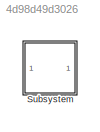
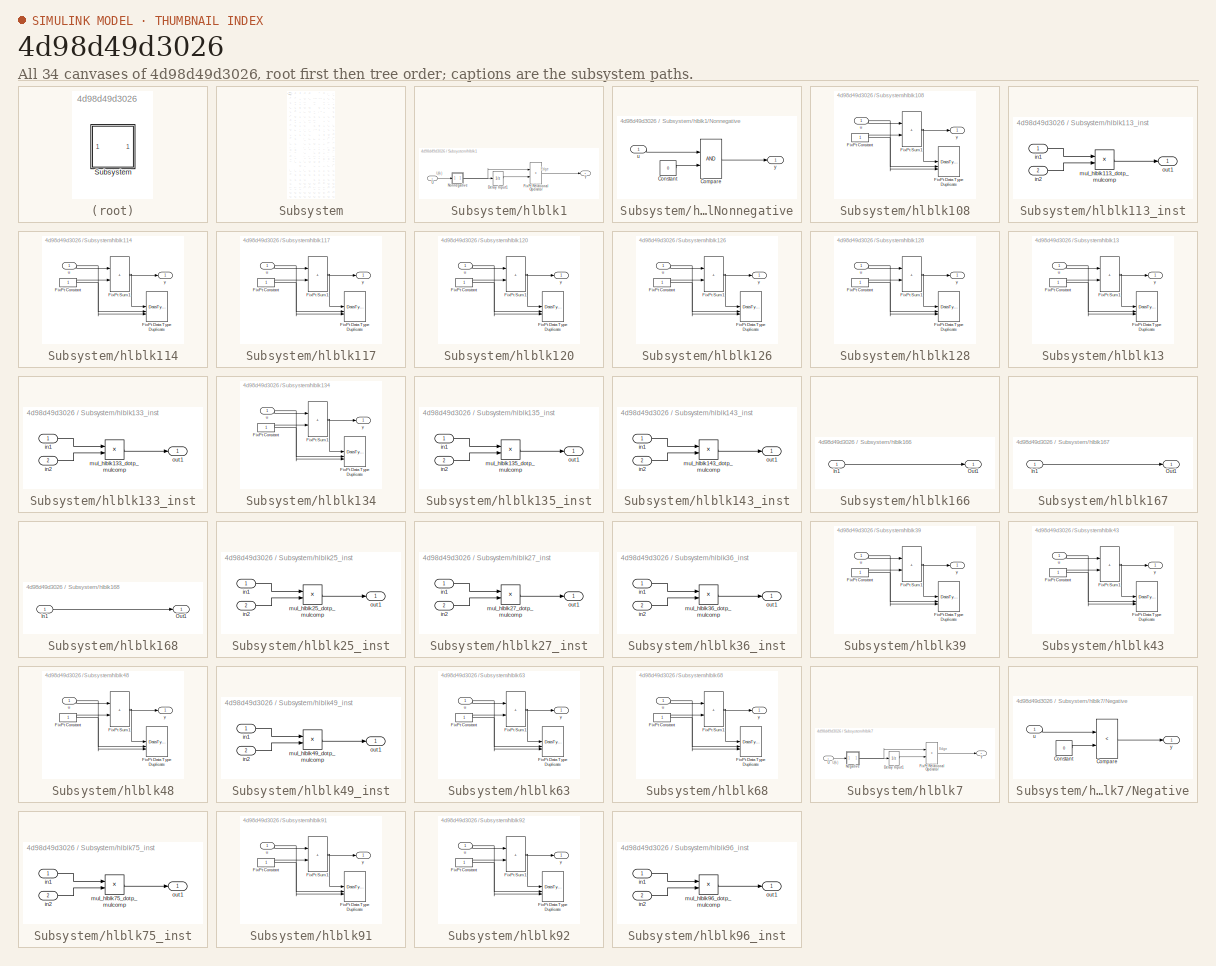
[diagram: thumbnail index - all 34 canvases of the model, root first then tree order]
MODEL slx_4d98d49d3026
KIND model
CONFIG AbsTol = auto
CONFIG EnableMultiTasking = off
CONFIG FixedStep = auto
CONFIG MaxStep = auto
CONFIG MinStep = auto
CONFIG RelTol = 1e-3
CONFIG SampleTimeConstraint = Unconstrained
CONFIG SolverName = VariableStepAuto
CONFIG StartTime = 0.0
CONFIG StopTime = 10.0
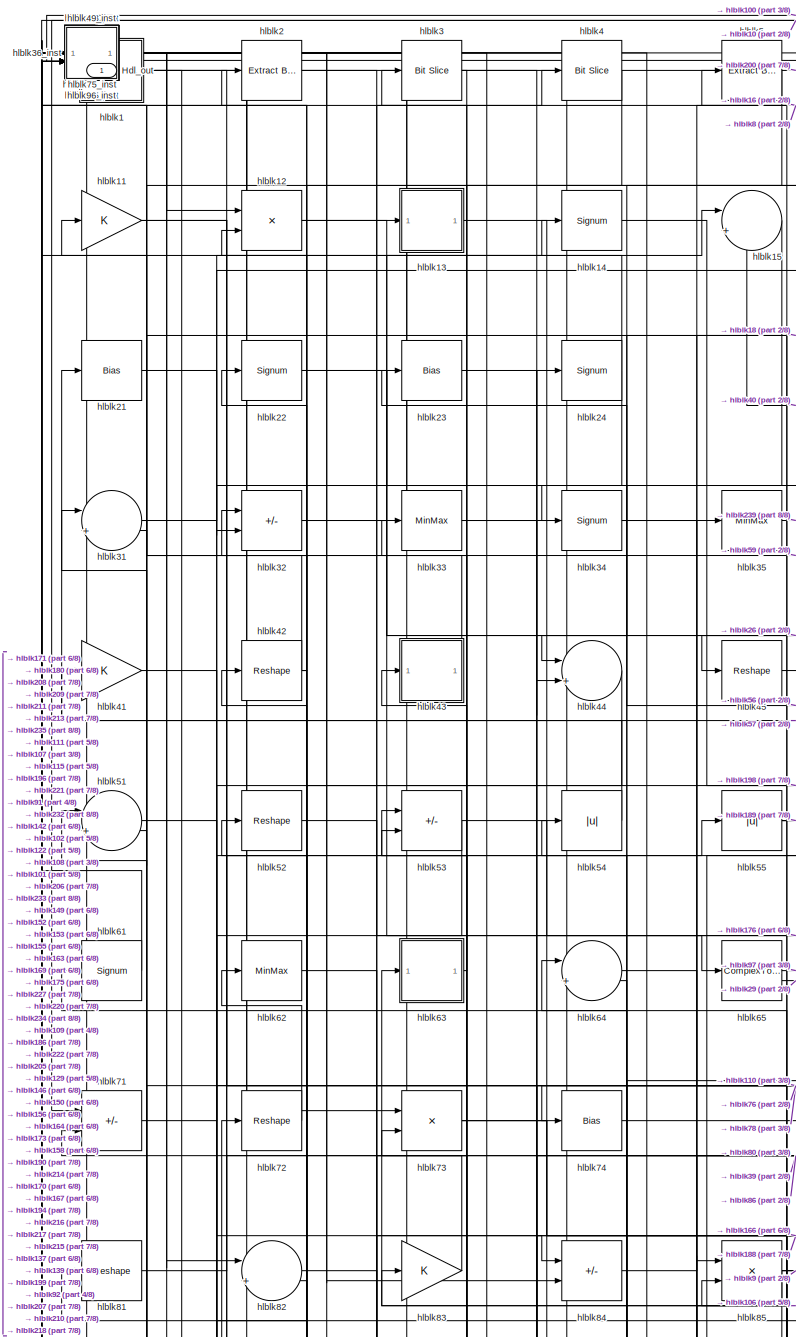
[diagram: Subsystem - part 1/8, top left region]
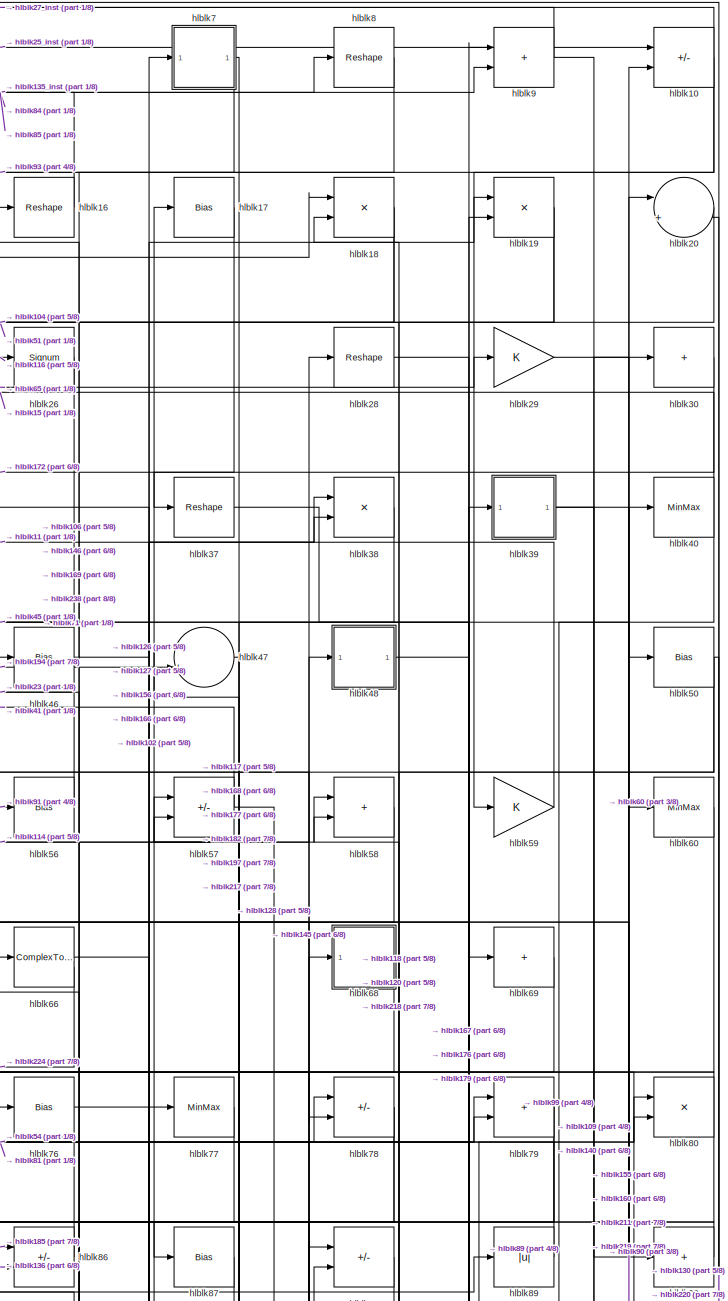
[diagram: Subsystem - part 2/8, top right region]
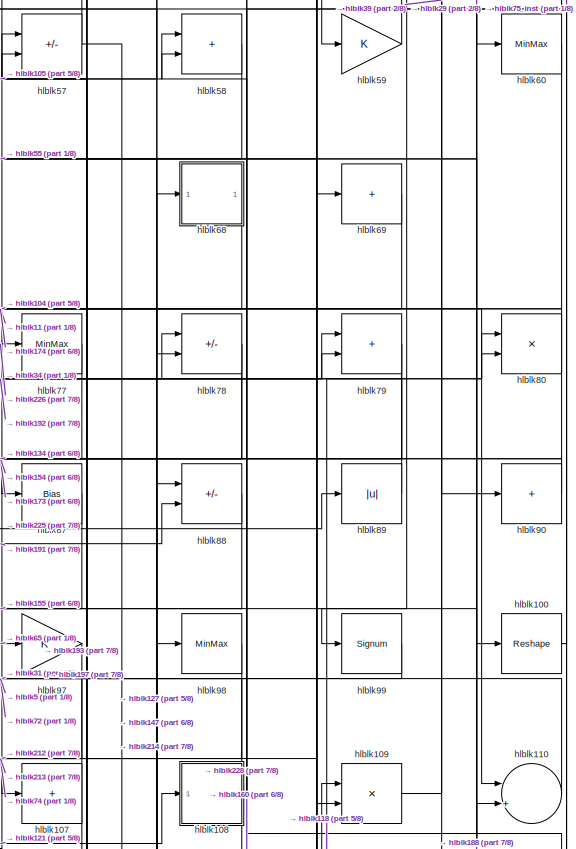
[diagram: Subsystem - part 3/8, middle right region]
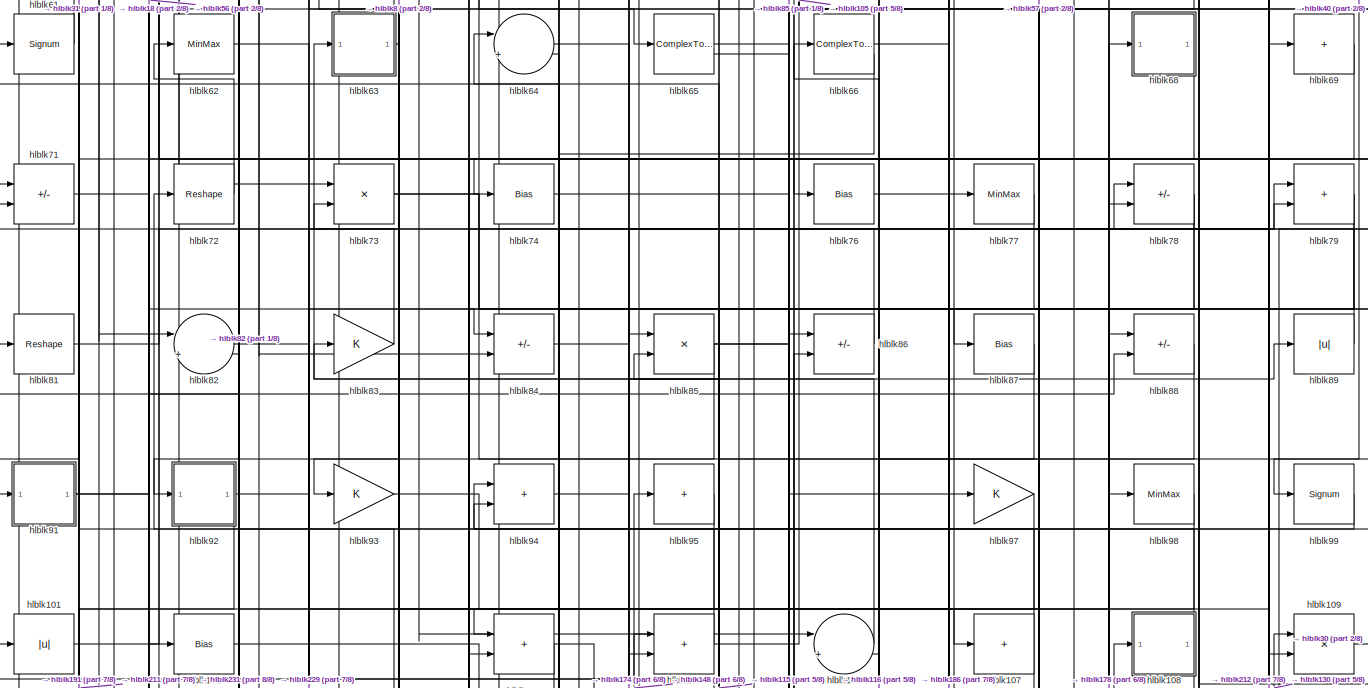
[diagram: Subsystem - part 4/8, full width, middle band]
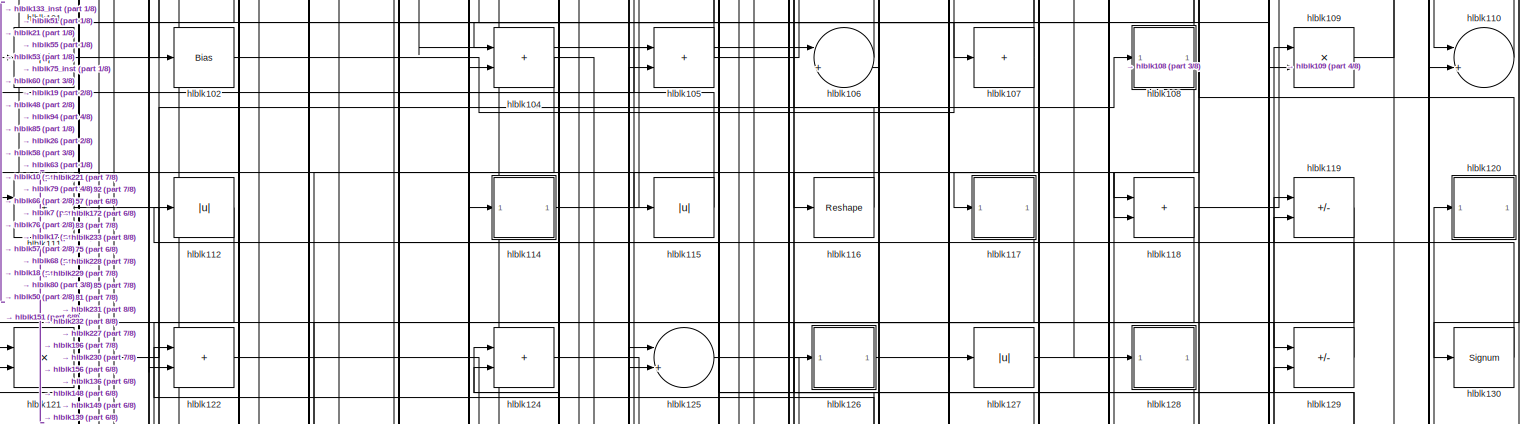
[diagram: Subsystem - part 5/8, full width, middle band]
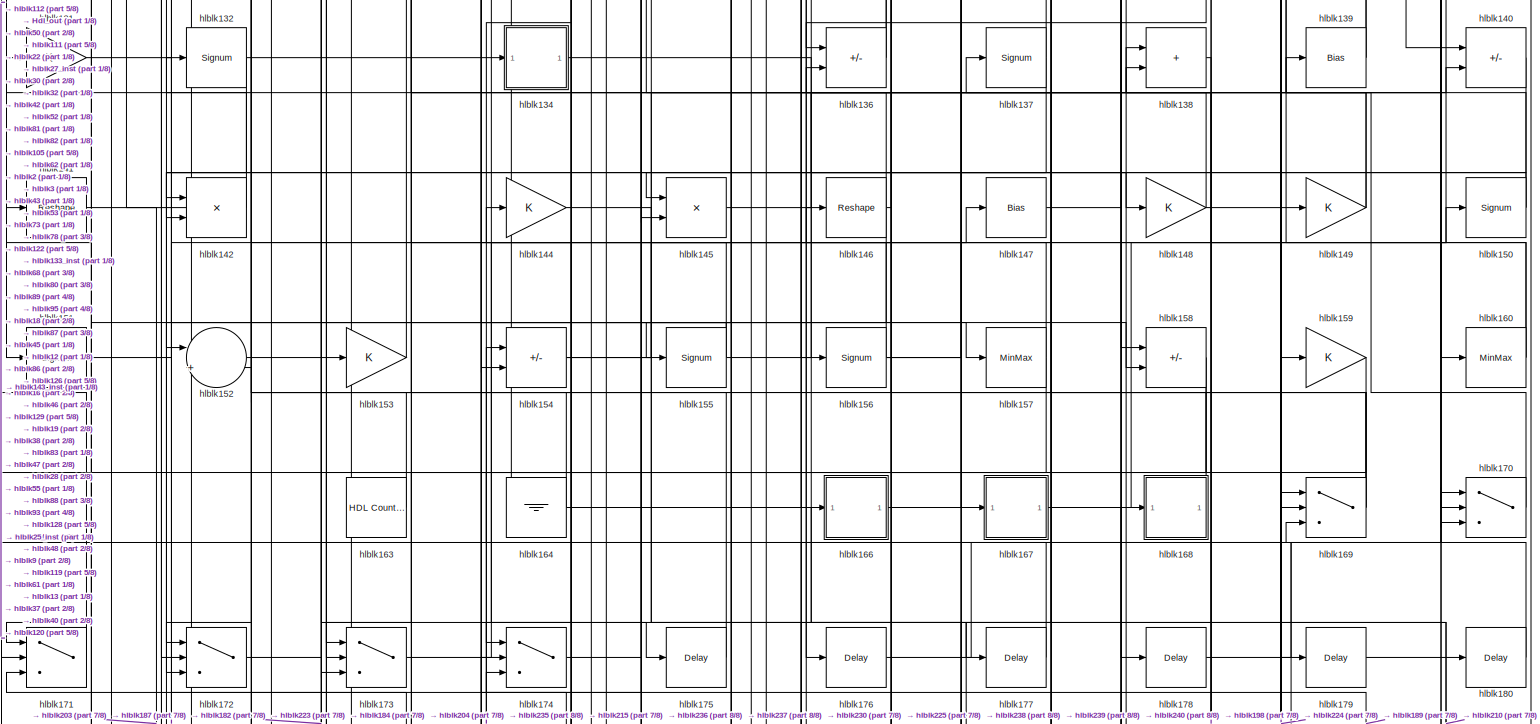
[diagram: Subsystem - part 6/8, full width, middle band]
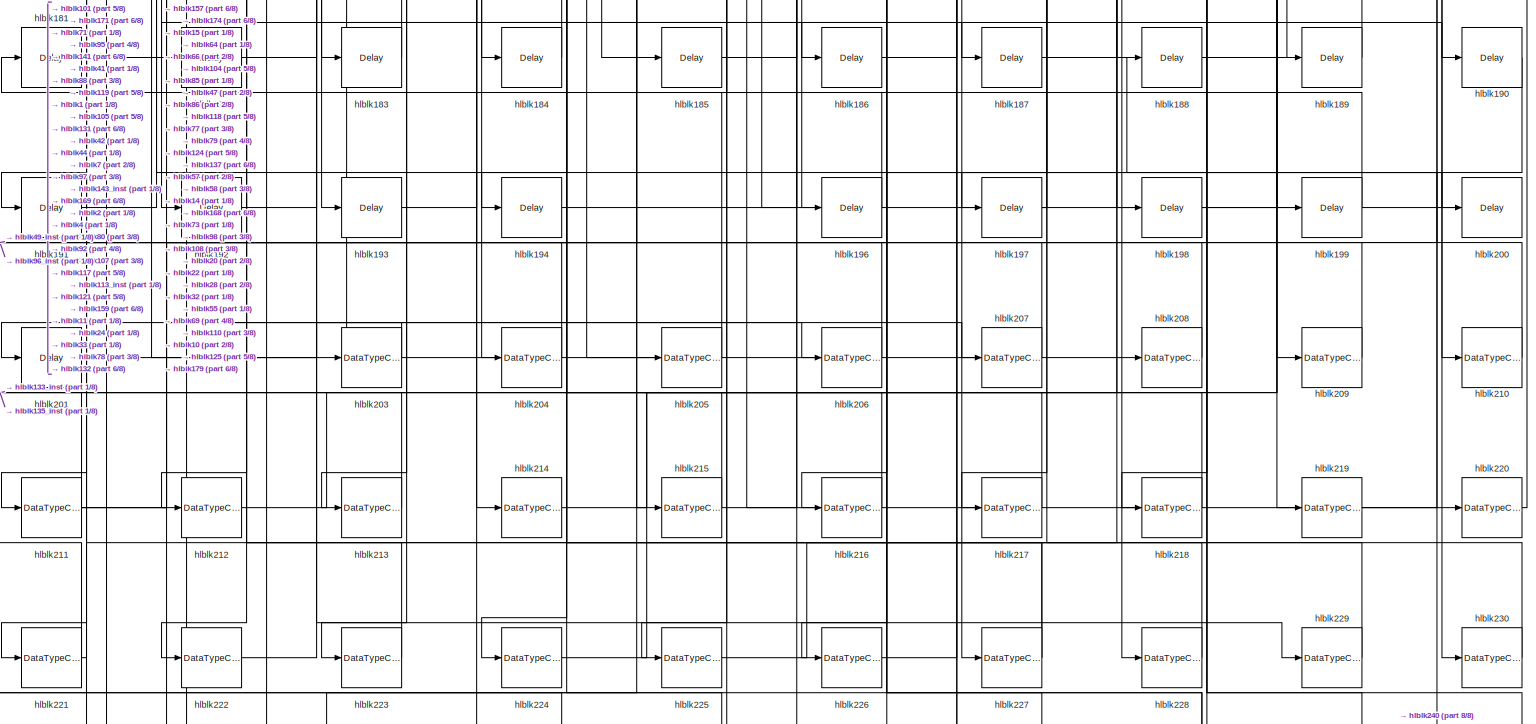
[diagram: Subsystem - part 7/8, full width, bottom band]
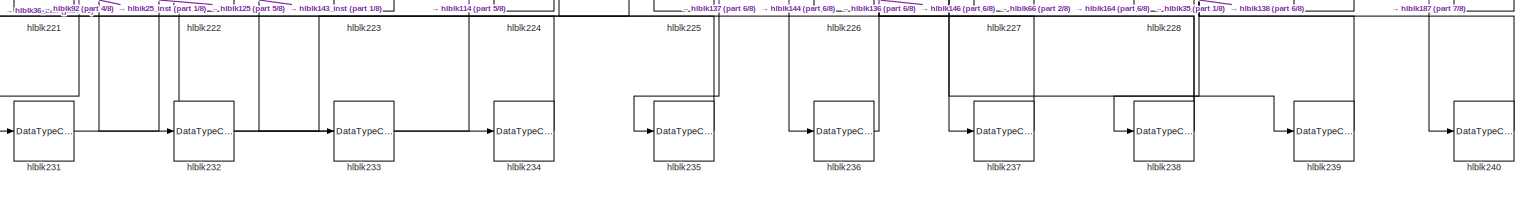
[diagram: Subsystem - part 8/8, full width, bottom band]
BLOCK [SubSystem] Subsystem
BLOCK [Outport] Subsystem/Hdl_out
  OutDataTypeStr = uint8
  SampleTime = 1
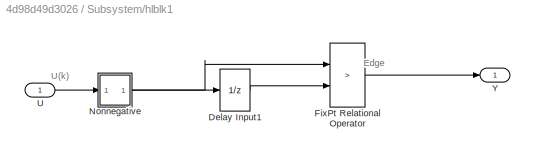
BLOCK [SubSystem] Subsystem/hlblk1
BLOCK [UnitDelay] Subsystem/hlblk1/Delay Input1
  Description = Store in Global RAM
  DisableCoverage = on
  HasFrameUpgradeWarning = on
  InitialCondition = vinit
  SampleTime = -1
BLOCK [RelationalOperator] Subsystem/hlblk1/FixPt Relational Operator
  InputSameDT = off
  Operator = >
  OutDataTypeStr = fixdt(0, 8)
  ZeroCross = off
BLOCK [SubSystem] Subsystem/hlblk1/Nonnegative
BLOCK [RelationalOperator] Subsystem/hlblk1/Nonnegative/Compare
  OutDataTypeStr = boolean
  ZeroCross = off
BLOCK [Constant] Subsystem/hlblk1/Nonnegative/Constant
  DisableCoverage = on
  OutDataTypeStr = Inherit: Inherit via back propagation
  PreserveConstantTs = on
  SampleTime = -1
  Value = 0
BLOCK [Inport] Subsystem/hlblk1/Nonnegative/u
  OutDataTypeStr = uint8
  SampleTime = 1
BLOCK [Outport] Subsystem/hlblk1/Nonnegative/y
  SampleTime = 1
BLOCK [Inport] Subsystem/hlblk1/U
  OutDataTypeStr = uint8
  SampleTime = 1
BLOCK [Outport] Subsystem/hlblk1/Y
  SampleTime = 1
BLOCK [Sum] Subsystem/hlblk10
  IconShape = rectangular
  Inputs = +-
  OutDataTypeStr = uint8
BLOCK [Reshape] Subsystem/hlblk100
BLOCK [Abs] Subsystem/hlblk101
  OutDataTypeStr = uint8
  SaturateOnIntegerOverflow = off
BLOCK [Bias] Subsystem/hlblk102
  Bias = 0.0
  SaturateOnIntegerOverflow = off
BLOCK [Sum] Subsystem/hlblk104
  IconShape = rectangular
  OutDataTypeStr = uint8
BLOCK [Sum] Subsystem/hlblk105
  IconShape = rectangular
  OutDataTypeStr = uint8
BLOCK [Sum] Subsystem/hlblk106
  Inputs = |++
  OutDataTypeStr = uint8
BLOCK [Sum] Subsystem/hlblk107
  IconShape = rectangular
  Inputs = +
  OutDataTypeStr = uint8
BLOCK [SubSystem] Subsystem/hlblk108
BLOCK [Constant] Subsystem/hlblk108/FixPt Constant
  DisableCoverage = on
  OutDataTypeStr = Inherit: Inherit via back propagation
  SampleTime = -1
BLOCK [DataTypeDuplicate] Subsystem/hlblk108/FixPt Data Type Duplicate
  DisableCoverage = on
  NumInputPorts = 3
BLOCK [Sum] Subsystem/hlblk108/FixPt Sum1
  IconShape = rectangular
  InputSameDT = on
  LockScale = on
  OutDataTypeStr = Inherit: Inherit via back propagation
BLOCK [Inport] Subsystem/hlblk108/u
  OutDataTypeStr = uint8
  SampleTime = 1
BLOCK [Outport] Subsystem/hlblk108/y
  SampleTime = 1
BLOCK [Product] Subsystem/hlblk109
  Inputs = */
  OutDataTypeStr = uint8
  RndMeth = Zero
  SaturateOnIntegerOverflow = on
BLOCK [Gain] Subsystem/hlblk11
  OutDataTypeStr = uint8
BLOCK [Sum] Subsystem/hlblk110
  Inputs = |++
  OutDataTypeStr = uint8
BLOCK [Sum] Subsystem/hlblk111
  IconShape = rectangular
  OutDataTypeStr = uint8
BLOCK [Abs] Subsystem/hlblk112
  OutDataTypeStr = uint8
  SaturateOnIntegerOverflow = off
BLOCK [SubSystem] Subsystem/hlblk113_inst
BLOCK [Inport] Subsystem/hlblk113_inst/in1
  OutDataTypeStr = uint8
  SampleTime = 1
BLOCK [Inport] Subsystem/hlblk113_inst/in2
  OutDataTypeStr = uint8
  Port = 2
  SampleTime = 1
BLOCK [Product] Subsystem/hlblk113_inst/mul_hlblk113_dotp_mulcomp
  Inputs = **
  OutDataTypeStr = uint8
  SampleTime = 1
BLOCK [Outport] Subsystem/hlblk113_inst/out1
  OutDataTypeStr = uint8
  SampleTime = 1
BLOCK [SubSystem] Subsystem/hlblk114
BLOCK [Constant] Subsystem/hlblk114/FixPt Constant
  DisableCoverage = on
  OutDataTypeStr = Inherit: Inherit via back propagation
  SampleTime = -1
BLOCK [DataTypeDuplicate] Subsystem/hlblk114/FixPt Data Type Duplicate
  DisableCoverage = on
  NumInputPorts = 3
BLOCK [Sum] Subsystem/hlblk114/FixPt Sum1
  IconShape = rectangular
  InputSameDT = on
  LockScale = on
  OutDataTypeStr = Inherit: Inherit via back propagation
BLOCK [Inport] Subsystem/hlblk114/u
  OutDataTypeStr = uint8
  SampleTime = 1
BLOCK [Outport] Subsystem/hlblk114/y
  SampleTime = 1
BLOCK [Abs] Subsystem/hlblk115
  OutDataTypeStr = uint8
  SaturateOnIntegerOverflow = off
BLOCK [Reshape] Subsystem/hlblk116
BLOCK [SubSystem] Subsystem/hlblk117
BLOCK [Constant] Subsystem/hlblk117/FixPt Constant
  DisableCoverage = on
  OutDataTypeStr = Inherit: Inherit via back propagation
  SampleTime = -1
BLOCK [DataTypeDuplicate] Subsystem/hlblk117/FixPt Data Type Duplicate
  DisableCoverage = on
  NumInputPorts = 3
BLOCK [Sum] Subsystem/hlblk117/FixPt Sum1
  IconShape = rectangular
  InputSameDT = on
  LockScale = on
  OutDataTypeStr = Inherit: Inherit via back propagation
BLOCK [Inport] Subsystem/hlblk117/u
  OutDataTypeStr = uint8
  SampleTime = 1
BLOCK [Outport] Subsystem/hlblk117/y
  SampleTime = 1
BLOCK [Sum] Subsystem/hlblk118
  IconShape = rectangular
  OutDataTypeStr = uint8
BLOCK [Sum] Subsystem/hlblk119
  IconShape = rectangular
  Inputs = +-
  OutDataTypeStr = uint8
BLOCK [Product] Subsystem/hlblk12
  Inputs = */
  OutDataTypeStr = uint8
  RndMeth = Zero
  SaturateOnIntegerOverflow = on
BLOCK [SubSystem] Subsystem/hlblk120
BLOCK [Constant] Subsystem/hlblk120/FixPt Constant
  DisableCoverage = on
  OutDataTypeStr = Inherit: Inherit via back propagation
  SampleTime = -1
BLOCK [DataTypeDuplicate] Subsystem/hlblk120/FixPt Data Type Duplicate
  DisableCoverage = on
  NumInputPorts = 3
BLOCK [Sum] Subsystem/hlblk120/FixPt Sum1
  IconShape = rectangular
  InputSameDT = on
  LockScale = on
  OutDataTypeStr = Inherit: Inherit via back propagation
BLOCK [Inport] Subsystem/hlblk120/u
  OutDataTypeStr = uint8
  SampleTime = 1
BLOCK [Outport] Subsystem/hlblk120/y
  SampleTime = 1
BLOCK [Product] Subsystem/hlblk121
  Inputs = */
  OutDataTypeStr = uint8
  RndMeth = Zero
  SaturateOnIntegerOverflow = on
BLOCK [Sum] Subsystem/hlblk122
  IconShape = rectangular
  OutDataTypeStr = uint8
BLOCK [Sum] Subsystem/hlblk124
  IconShape = rectangular
  OutDataTypeStr = uint8
BLOCK [Sum] Subsystem/hlblk125
  Inputs = |++
  OutDataTypeStr = uint8
BLOCK [SubSystem] Subsystem/hlblk126
BLOCK [Constant] Subsystem/hlblk126/FixPt Constant
  DisableCoverage = on
  OutDataTypeStr = Inherit: Inherit via back propagation
  SampleTime = -1
BLOCK [DataTypeDuplicate] Subsystem/hlblk126/FixPt Data Type Duplicate
  DisableCoverage = on
  NumInputPorts = 3
BLOCK [Sum] Subsystem/hlblk126/FixPt Sum1
  IconShape = rectangular
  InputSameDT = on
  LockScale = on
  OutDataTypeStr = Inherit: Inherit via back propagation
BLOCK [Inport] Subsystem/hlblk126/u
  OutDataTypeStr = uint8
  SampleTime = 1
BLOCK [Outport] Subsystem/hlblk126/y
  SampleTime = 1
BLOCK [Abs] Subsystem/hlblk127
  OutDataTypeStr = uint8
  SaturateOnIntegerOverflow = off
BLOCK [SubSystem] Subsystem/hlblk128
BLOCK [Constant] Subsystem/hlblk128/FixPt Constant
  DisableCoverage = on
  OutDataTypeStr = Inherit: Inherit via back propagation
  SampleTime = -1
BLOCK [DataTypeDuplicate] Subsystem/hlblk128/FixPt Data Type Duplicate
  DisableCoverage = on
  NumInputPorts = 3
BLOCK [Sum] Subsystem/hlblk128/FixPt Sum1
  IconShape = rectangular
  InputSameDT = on
  LockScale = on
  OutDataTypeStr = Inherit: Inherit via back propagation
BLOCK [Inport] Subsystem/hlblk128/u
  OutDataTypeStr = uint8
  SampleTime = 1
BLOCK [Outport] Subsystem/hlblk128/y
  SampleTime = 1
BLOCK [Sum] Subsystem/hlblk129
  IconShape = rectangular
  Inputs = +-
  OutDataTypeStr = uint8
BLOCK [SubSystem] Subsystem/hlblk13
BLOCK [Constant] Subsystem/hlblk13/FixPt Constant
  DisableCoverage = on
  OutDataTypeStr = Inherit: Inherit via back propagation
  SampleTime = -1
BLOCK [DataTypeDuplicate] Subsystem/hlblk13/FixPt Data Type Duplicate
  DisableCoverage = on
  NumInputPorts = 3
BLOCK [Sum] Subsystem/hlblk13/FixPt Sum1
  IconShape = rectangular
  InputSameDT = on
  LockScale = on
  OutDataTypeStr = Inherit: Inherit via back propagation
BLOCK [Inport] Subsystem/hlblk13/u
  OutDataTypeStr = uint8
  SampleTime = 1
BLOCK [Outport] Subsystem/hlblk13/y
  SampleTime = 1
BLOCK [Signum] Subsystem/hlblk130
BLOCK [Gain] Subsystem/hlblk131
  OutDataTypeStr = uint8
BLOCK [Signum] Subsystem/hlblk132
BLOCK [SubSystem] Subsystem/hlblk133_inst
BLOCK [Inport] Subsystem/hlblk133_inst/in1
  OutDataTypeStr = uint8
  SampleTime = 1
BLOCK [Inport] Subsystem/hlblk133_inst/in2
  OutDataTypeStr = uint8
  Port = 2
  SampleTime = 1
BLOCK [Product] Subsystem/hlblk133_inst/mul_hlblk133_dotp_mulcomp
  Inputs = **
  OutDataTypeStr = uint8
  SampleTime = 1
BLOCK [Outport] Subsystem/hlblk133_inst/out1
  OutDataTypeStr = uint8
  SampleTime = 1
BLOCK [SubSystem] Subsystem/hlblk134
BLOCK [Constant] Subsystem/hlblk134/FixPt Constant
  DisableCoverage = on
  OutDataTypeStr = Inherit: Inherit via back propagation
  SampleTime = -1
BLOCK [DataTypeDuplicate] Subsystem/hlblk134/FixPt Data Type Duplicate
  DisableCoverage = on
  NumInputPorts = 3
BLOCK [Sum] Subsystem/hlblk134/FixPt Sum1
  IconShape = rectangular
  InputSameDT = on
  LockScale = on
  OutDataTypeStr = Inherit: Inherit via back propagation
BLOCK [Inport] Subsystem/hlblk134/u
  OutDataTypeStr = uint8
  SampleTime = 1
BLOCK [Outport] Subsystem/hlblk134/y
  SampleTime = 1
BLOCK [SubSystem] Subsystem/hlblk135_inst
BLOCK [Inport] Subsystem/hlblk135_inst/in1
  OutDataTypeStr = uint8
  SampleTime = 1
BLOCK [Inport] Subsystem/hlblk135_inst/in2
  OutDataTypeStr = uint8
  Port = 2
  SampleTime = 1
BLOCK [Product] Subsystem/hlblk135_inst/mul_hlblk135_dotp_mulcomp
  Inputs = **
  OutDataTypeStr = uint8
  SampleTime = 1
BLOCK [Outport] Subsystem/hlblk135_inst/out1
  OutDataTypeStr = uint8
  SampleTime = 1
BLOCK [Sum] Subsystem/hlblk136
  IconShape = rectangular
  Inputs = +-
  OutDataTypeStr = uint8
BLOCK [Signum] Subsystem/hlblk137
BLOCK [Sum] Subsystem/hlblk138
  IconShape = rectangular
  OutDataTypeStr = uint8
BLOCK [Bias] Subsystem/hlblk139
  Bias = 0.0
  SaturateOnIntegerOverflow = off
BLOCK [Signum] Subsystem/hlblk14
BLOCK [Sum] Subsystem/hlblk140
  IconShape = rectangular
  Inputs = +-
  OutDataTypeStr = uint8
BLOCK [Reshape] Subsystem/hlblk141
BLOCK [Product] Subsystem/hlblk142
  Inputs = */
  OutDataTypeStr = uint8
  RndMeth = Zero
  SaturateOnIntegerOverflow = on
BLOCK [SubSystem] Subsystem/hlblk143_inst
BLOCK [Inport] Subsystem/hlblk143_inst/in1
  OutDataTypeStr = uint8
  SampleTime = 1
BLOCK [Inport] Subsystem/hlblk143_inst/in2
  OutDataTypeStr = uint8
  Port = 2
  SampleTime = 1
BLOCK [Product] Subsystem/hlblk143_inst/mul_hlblk143_dotp_mulcomp
  Inputs = **
  OutDataTypeStr = uint8
  SampleTime = 1
BLOCK [Outport] Subsystem/hlblk143_inst/out1
  OutDataTypeStr = uint8
  SampleTime = 1
BLOCK [Gain] Subsystem/hlblk144
  OutDataTypeStr = uint8
BLOCK [Product] Subsystem/hlblk145
  Inputs = */
  OutDataTypeStr = uint8
  RndMeth = Zero
  SaturateOnIntegerOverflow = on
BLOCK [Reshape] Subsystem/hlblk146
BLOCK [Bias] Subsystem/hlblk147
  Bias = 0.0
  SaturateOnIntegerOverflow = off
BLOCK [Gain] Subsystem/hlblk148
  OutDataTypeStr = uint8
BLOCK [Gain] Subsystem/hlblk149
  OutDataTypeStr = uint8
BLOCK [Sum] Subsystem/hlblk15
  Inputs = |++
  OutDataTypeStr = uint8
BLOCK [Signum] Subsystem/hlblk150
BLOCK [Signum] Subsystem/hlblk151
BLOCK [Sum] Subsystem/hlblk152
  Inputs = |++
  OutDataTypeStr = uint8
BLOCK [Gain] Subsystem/hlblk153
  OutDataTypeStr = uint8
BLOCK [Sum] Subsystem/hlblk154
  IconShape = rectangular
  Inputs = +-
  OutDataTypeStr = uint8
BLOCK [Signum] Subsystem/hlblk155
BLOCK [Signum] Subsystem/hlblk156
BLOCK [MinMax] Subsystem/hlblk157
  OutDataTypeStr = uint8
BLOCK [Sum] Subsystem/hlblk158
  IconShape = rectangular
  Inputs = +-
  OutDataTypeStr = uint8
BLOCK [Gain] Subsystem/hlblk159
  OutDataTypeStr = uint8
BLOCK [Reshape] Subsystem/hlblk16
BLOCK [MinMax] Subsystem/hlblk160
  OutDataTypeStr = uint8
BLOCK [Reference] Subsystem/hlblk163  REF=hdlsllib/Sources/HDL Counter
  SourceBlock = hdlsllib/Sources/HDL Counter
  SourceType = HDL Counter
BLOCK [Ground] Subsystem/hlblk164
BLOCK [SubSystem] Subsystem/hlblk166
BLOCK [Inport] Subsystem/hlblk166/In1
  OutDataTypeStr = uint8
  PortDimensions = 1
  SampleTime = 1
BLOCK [Outport] Subsystem/hlblk166/Out1
  SampleTime = 1
BLOCK [SubSystem] Subsystem/hlblk167
BLOCK [Inport] Subsystem/hlblk167/In1
  OutDataTypeStr = uint8
  PortDimensions = 1
  SampleTime = 1
BLOCK [Outport] Subsystem/hlblk167/Out1
  SampleTime = 1
BLOCK [SubSystem] Subsystem/hlblk168
BLOCK [Inport] Subsystem/hlblk168/In1
  OutDataTypeStr = uint8
  PortDimensions = 1
  SampleTime = 1
BLOCK [Outport] Subsystem/hlblk168/Out1
  SampleTime = 1
BLOCK [Switch] Subsystem/hlblk169
  InputSameDT = off
  OutDataTypeStr = uint8
  SaturateOnIntegerOverflow = off
BLOCK [Bias] Subsystem/hlblk17
  Bias = 0.0
  SaturateOnIntegerOverflow = off
BLOCK [Switch] Subsystem/hlblk170
  InputSameDT = off
  OutDataTypeStr = uint8
  SaturateOnIntegerOverflow = off
BLOCK [Switch] Subsystem/hlblk171
  InputSameDT = off
  OutDataTypeStr = uint8
  SaturateOnIntegerOverflow = off
BLOCK [Switch] Subsystem/hlblk172
  InputSameDT = off
  OutDataTypeStr = uint8
  SaturateOnIntegerOverflow = off
BLOCK [Switch] Subsystem/hlblk173
  InputSameDT = off
  OutDataTypeStr = uint8
  SaturateOnIntegerOverflow = off
BLOCK [Switch] Subsystem/hlblk174
  InputSameDT = off
  OutDataTypeStr = uint8
  SaturateOnIntegerOverflow = off
BLOCK [Delay] Subsystem/hlblk175
  InputPortMap = u0
  SampleTime = 1
BLOCK [Delay] Subsystem/hlblk176
  InputPortMap = u0
  SampleTime = 1
BLOCK [Delay] Subsystem/hlblk177
  InputPortMap = u0
  SampleTime = 1
BLOCK [Delay] Subsystem/hlblk178
  InputPortMap = u0
  SampleTime = 1
BLOCK [Delay] Subsystem/hlblk179
  InputPortMap = u0
  SampleTime = 1
BLOCK [Product] Subsystem/hlblk18
  Inputs = */
  OutDataTypeStr = uint8
  RndMeth = Zero
  SaturateOnIntegerOverflow = on
BLOCK [Delay] Subsystem/hlblk180
  InputPortMap = u0
  SampleTime = 1
BLOCK [Delay] Subsystem/hlblk181
  InputPortMap = u0
  SampleTime = 1
BLOCK [Delay] Subsystem/hlblk182
  InputPortMap = u0
  SampleTime = 1
BLOCK [Delay] Subsystem/hlblk183
  InputPortMap = u0
  SampleTime = 1
BLOCK [Delay] Subsystem/hlblk184
  InputPortMap = u0
  SampleTime = 1
BLOCK [Delay] Subsystem/hlblk185
  InputPortMap = u0
  SampleTime = 1
BLOCK [Delay] Subsystem/hlblk186
  InputPortMap = u0
  SampleTime = 1
BLOCK [Delay] Subsystem/hlblk187
  InputPortMap = u0
  SampleTime = 1
BLOCK [Delay] Subsystem/hlblk188
  InputPortMap = u0
  SampleTime = 1
BLOCK [Delay] Subsystem/hlblk189
  InputPortMap = u0
  SampleTime = 1
BLOCK [Product] Subsystem/hlblk19
  Inputs = */
  OutDataTypeStr = uint8
  RndMeth = Zero
  SaturateOnIntegerOverflow = on
BLOCK [Delay] Subsystem/hlblk190
  InputPortMap = u0
  SampleTime = 1
BLOCK [Delay] Subsystem/hlblk191
  InputPortMap = u0
  SampleTime = 1
BLOCK [Delay] Subsystem/hlblk192
  InputPortMap = u0
  SampleTime = 1
BLOCK [Delay] Subsystem/hlblk193
  InputPortMap = u0
  SampleTime = 1
BLOCK [Delay] Subsystem/hlblk194
  InputPortMap = u0
  SampleTime = 1
BLOCK [Delay] Subsystem/hlblk196
  InputPortMap = u0
  SampleTime = 1
BLOCK [Delay] Subsystem/hlblk197
  InputPortMap = u0
  SampleTime = 1
BLOCK [Delay] Subsystem/hlblk198
  InputPortMap = u0
  SampleTime = 1
BLOCK [Delay] Subsystem/hlblk199
  InputPortMap = u0
  SampleTime = 1
BLOCK [Reference] Subsystem/hlblk2  REF=simulink/Logic and Bit
Operations/Extract Bits
  LibrarySourceBlock = hdlsllib/Logic and Bit\nOperations/Extract Bits
  SourceBlock = simulink/Logic and Bit\nOperations/Extract Bits
  SourceType = Extract Bits
BLOCK [Sum] Subsystem/hlblk20
  Inputs = |++
  OutDataTypeStr = uint8
BLOCK [Delay] Subsystem/hlblk200
  InputPortMap = u0
  SampleTime = 1
BLOCK [Delay] Subsystem/hlblk201
  InputPortMap = u0
  SampleTime = 1
BLOCK [DataTypeConversion] Subsystem/hlblk203
  OutDataTypeStr = uint8
  RndMeth = Floor
  SaturateOnIntegerOverflow = off
BLOCK [DataTypeConversion] Subsystem/hlblk204
  OutDataTypeStr = uint8
  RndMeth = Floor
  SaturateOnIntegerOverflow = off
BLOCK [DataTypeConversion] Subsystem/hlblk205
  OutDataTypeStr = uint8
  RndMeth = Floor
  SaturateOnIntegerOverflow = off
BLOCK [DataTypeConversion] Subsystem/hlblk206
  OutDataTypeStr = uint8
  RndMeth = Floor
  SaturateOnIntegerOverflow = off
BLOCK [DataTypeConversion] Subsystem/hlblk207
  OutDataTypeStr = uint8
  RndMeth = Floor
  SaturateOnIntegerOverflow = off
BLOCK [DataTypeConversion] Subsystem/hlblk208
  OutDataTypeStr = uint8
  RndMeth = Floor
  SaturateOnIntegerOverflow = off
BLOCK [DataTypeConversion] Subsystem/hlblk209
  OutDataTypeStr = uint8
  RndMeth = Floor
  SaturateOnIntegerOverflow = off
BLOCK [Bias] Subsystem/hlblk21
  Bias = 0.0
  SaturateOnIntegerOverflow = off
BLOCK [DataTypeConversion] Subsystem/hlblk210
  OutDataTypeStr = uint8
  RndMeth = Floor
  SaturateOnIntegerOverflow = off
BLOCK [DataTypeConversion] Subsystem/hlblk211
  OutDataTypeStr = uint8
  RndMeth = Floor
  SaturateOnIntegerOverflow = off
BLOCK [DataTypeConversion] Subsystem/hlblk212
  OutDataTypeStr = uint8
  RndMeth = Floor
  SaturateOnIntegerOverflow = off
BLOCK [DataTypeConversion] Subsystem/hlblk213
  OutDataTypeStr = uint8
  RndMeth = Floor
  SaturateOnIntegerOverflow = off
BLOCK [DataTypeConversion] Subsystem/hlblk214
  OutDataTypeStr = uint8
  RndMeth = Floor
  SaturateOnIntegerOverflow = off
BLOCK [DataTypeConversion] Subsystem/hlblk215
  OutDataTypeStr = uint8
  RndMeth = Floor
  SaturateOnIntegerOverflow = off
BLOCK [DataTypeConversion] Subsystem/hlblk216
  OutDataTypeStr = uint8
  RndMeth = Floor
  SaturateOnIntegerOverflow = off
BLOCK [DataTypeConversion] Subsystem/hlblk217
  OutDataTypeStr = uint8
  RndMeth = Floor
  SaturateOnIntegerOverflow = off
BLOCK [DataTypeConversion] Subsystem/hlblk218
  OutDataTypeStr = uint8
  RndMeth = Floor
  SaturateOnIntegerOverflow = off
BLOCK [DataTypeConversion] Subsystem/hlblk219
  OutDataTypeStr = uint8
  RndMeth = Floor
  SaturateOnIntegerOverflow = off
BLOCK [Signum] Subsystem/hlblk22
BLOCK [DataTypeConversion] Subsystem/hlblk220
  OutDataTypeStr = uint8
  RndMeth = Floor
  SaturateOnIntegerOverflow = off
BLOCK [DataTypeConversion] Subsystem/hlblk221
  OutDataTypeStr = uint8
  RndMeth = Floor
  SaturateOnIntegerOverflow = off
BLOCK [DataTypeConversion] Subsystem/hlblk222
  OutDataTypeStr = uint8
  RndMeth = Floor
  SaturateOnIntegerOverflow = off
BLOCK [DataTypeConversion] Subsystem/hlblk223
  OutDataTypeStr = uint8
  RndMeth = Floor
  SaturateOnIntegerOverflow = off
BLOCK [DataTypeConversion] Subsystem/hlblk224
  OutDataTypeStr = uint8
  RndMeth = Floor
  SaturateOnIntegerOverflow = off
BLOCK [DataTypeConversion] Subsystem/hlblk225
  OutDataTypeStr = uint8
  RndMeth = Floor
  SaturateOnIntegerOverflow = off
BLOCK [DataTypeConversion] Subsystem/hlblk226
  OutDataTypeStr = uint8
  RndMeth = Floor
  SaturateOnIntegerOverflow = off
BLOCK [DataTypeConversion] Subsystem/hlblk227
  OutDataTypeStr = uint8
  RndMeth = Floor
  SaturateOnIntegerOverflow = off
BLOCK [DataTypeConversion] Subsystem/hlblk228
  OutDataTypeStr = uint8
  RndMeth = Floor
  SaturateOnIntegerOverflow = off
BLOCK [DataTypeConversion] Subsystem/hlblk229
  OutDataTypeStr = uint8
  RndMeth = Floor
  SaturateOnIntegerOverflow = off
BLOCK [Bias] Subsystem/hlblk23
  Bias = 0.0
  SaturateOnIntegerOverflow = off
BLOCK [DataTypeConversion] Subsystem/hlblk230
  OutDataTypeStr = uint8
  RndMeth = Floor
  SaturateOnIntegerOverflow = off
BLOCK [DataTypeConversion] Subsystem/hlblk231
  OutDataTypeStr = uint8
  RndMeth = Floor
  SaturateOnIntegerOverflow = off
BLOCK [DataTypeConversion] Subsystem/hlblk232
  OutDataTypeStr = uint8
  RndMeth = Floor
  SaturateOnIntegerOverflow = off
BLOCK [DataTypeConversion] Subsystem/hlblk233
  OutDataTypeStr = uint8
  RndMeth = Floor
  SaturateOnIntegerOverflow = off
BLOCK [DataTypeConversion] Subsystem/hlblk234
  OutDataTypeStr = uint8
  RndMeth = Floor
  SaturateOnIntegerOverflow = off
BLOCK [DataTypeConversion] Subsystem/hlblk235
  OutDataTypeStr = uint8
  RndMeth = Floor
  SaturateOnIntegerOverflow = off
BLOCK [DataTypeConversion] Subsystem/hlblk236
  OutDataTypeStr = uint8
  RndMeth = Floor
  SaturateOnIntegerOverflow = off
BLOCK [DataTypeConversion] Subsystem/hlblk237
  OutDataTypeStr = uint8
  RndMeth = Floor
  SaturateOnIntegerOverflow = off
BLOCK [DataTypeConversion] Subsystem/hlblk238
  OutDataTypeStr = uint8
  RndMeth = Floor
  SaturateOnIntegerOverflow = off
BLOCK [DataTypeConversion] Subsystem/hlblk239
  OutDataTypeStr = uint8
  RndMeth = Floor
  SaturateOnIntegerOverflow = off
BLOCK [Signum] Subsystem/hlblk24
BLOCK [DataTypeConversion] Subsystem/hlblk240
  OutDataTypeStr = uint8
  RndMeth = Floor
  SaturateOnIntegerOverflow = off
BLOCK [SubSystem] Subsystem/hlblk25_inst
BLOCK [Inport] Subsystem/hlblk25_inst/in1
  OutDataTypeStr = uint8
  SampleTime = 1
BLOCK [Inport] Subsystem/hlblk25_inst/in2
  OutDataTypeStr = uint8
  Port = 2
  SampleTime = 1
BLOCK [Product] Subsystem/hlblk25_inst/mul_hlblk25_dotp_mulcomp
  Inputs = **
  OutDataTypeStr = uint8
  SampleTime = 1
BLOCK [Outport] Subsystem/hlblk25_inst/out1
  OutDataTypeStr = uint8
  SampleTime = 1
BLOCK [Signum] Subsystem/hlblk26
BLOCK [SubSystem] Subsystem/hlblk27_inst
BLOCK [Inport] Subsystem/hlblk27_inst/in1
  OutDataTypeStr = uint8
  SampleTime = 1
BLOCK [Inport] Subsystem/hlblk27_inst/in2
  OutDataTypeStr = uint8
  Port = 2
  SampleTime = 1
BLOCK [Product] Subsystem/hlblk27_inst/mul_hlblk27_dotp_mulcomp
  Inputs = **
  OutDataTypeStr = uint8
  SampleTime = 1
BLOCK [Outport] Subsystem/hlblk27_inst/out1
  OutDataTypeStr = uint8
  SampleTime = 1
BLOCK [Reshape] Subsystem/hlblk28
BLOCK [Gain] Subsystem/hlblk29
  OutDataTypeStr = uint8
BLOCK [Reference] Subsystem/hlblk3  REF=hdlsllib/Logic and Bit
Operations/Bit Slice
  SourceBlock = hdlsllib/Logic and Bit\nOperations/Bit Slice
  SourceType = Bit Slice
BLOCK [Sum] Subsystem/hlblk30
  IconShape = rectangular
  Inputs = +
  OutDataTypeStr = uint8
BLOCK [Sum] Subsystem/hlblk31
  Inputs = |++
  OutDataTypeStr = uint8
BLOCK [Sum] Subsystem/hlblk32
  IconShape = rectangular
  Inputs = +-
  OutDataTypeStr = uint8
BLOCK [MinMax] Subsystem/hlblk33
  OutDataTypeStr = uint8
BLOCK [Signum] Subsystem/hlblk34
BLOCK [MinMax] Subsystem/hlblk35
  OutDataTypeStr = uint8
BLOCK [SubSystem] Subsystem/hlblk36_inst
BLOCK [Inport] Subsystem/hlblk36_inst/in1
  OutDataTypeStr = uint8
  SampleTime = 1
BLOCK [Inport] Subsystem/hlblk36_inst/in2
  OutDataTypeStr = uint8
  Port = 2
  SampleTime = 1
BLOCK [Product] Subsystem/hlblk36_inst/mul_hlblk36_dotp_mulcomp
  Inputs = **
  OutDataTypeStr = uint8
  SampleTime = 1
BLOCK [Outport] Subsystem/hlblk36_inst/out1
  OutDataTypeStr = uint8
  SampleTime = 1
BLOCK [Reshape] Subsystem/hlblk37
BLOCK [Product] Subsystem/hlblk38
  Inputs = */
  OutDataTypeStr = uint8
  RndMeth = Zero
  SaturateOnIntegerOverflow = on
BLOCK [SubSystem] Subsystem/hlblk39
BLOCK [Constant] Subsystem/hlblk39/FixPt Constant
  DisableCoverage = on
  OutDataTypeStr = Inherit: Inherit via back propagation
  SampleTime = -1
BLOCK [DataTypeDuplicate] Subsystem/hlblk39/FixPt Data Type Duplicate
  DisableCoverage = on
  NumInputPorts = 3
BLOCK [Sum] Subsystem/hlblk39/FixPt Sum1
  IconShape = rectangular
  InputSameDT = on
  LockScale = on
  OutDataTypeStr = Inherit: Inherit via back propagation
BLOCK [Inport] Subsystem/hlblk39/u
  OutDataTypeStr = uint8
  SampleTime = 1
BLOCK [Outport] Subsystem/hlblk39/y
  SampleTime = 1
BLOCK [Reference] Subsystem/hlblk4  REF=hdlsllib/Logic and Bit
Operations/Bit Slice
  SourceBlock = hdlsllib/Logic and Bit\nOperations/Bit Slice
  SourceType = Bit Slice
BLOCK [MinMax] Subsystem/hlblk40
  OutDataTypeStr = uint8
BLOCK [Gain] Subsystem/hlblk41
  OutDataTypeStr = uint8
BLOCK [Reshape] Subsystem/hlblk42
BLOCK [SubSystem] Subsystem/hlblk43
BLOCK [Constant] Subsystem/hlblk43/FixPt Constant
  DisableCoverage = on
  OutDataTypeStr = Inherit: Inherit via back propagation
  SampleTime = -1
BLOCK [DataTypeDuplicate] Subsystem/hlblk43/FixPt Data Type Duplicate
  DisableCoverage = on
  NumInputPorts = 3
BLOCK [Sum] Subsystem/hlblk43/FixPt Sum1
  IconShape = rectangular
  InputSameDT = on
  LockScale = on
  OutDataTypeStr = Inherit: Inherit via back propagation
BLOCK [Inport] Subsystem/hlblk43/u
  OutDataTypeStr = uint8
  SampleTime = 1
BLOCK [Outport] Subsystem/hlblk43/y
  SampleTime = 1
BLOCK [Sum] Subsystem/hlblk44
  Inputs = |++
  OutDataTypeStr = uint8
BLOCK [Reshape] Subsystem/hlblk45
BLOCK [Bias] Subsystem/hlblk46
  Bias = 0.0
  SaturateOnIntegerOverflow = off
BLOCK [Sum] Subsystem/hlblk47
  Inputs = |++
  OutDataTypeStr = uint8
BLOCK [SubSystem] Subsystem/hlblk48
BLOCK [Constant] Subsystem/hlblk48/FixPt Constant
  DisableCoverage = on
  OutDataTypeStr = Inherit: Inherit via back propagation
  SampleTime = -1
BLOCK [DataTypeDuplicate] Subsystem/hlblk48/FixPt Data Type Duplicate
  DisableCoverage = on
  NumInputPorts = 3
BLOCK [Sum] Subsystem/hlblk48/FixPt Sum1
  IconShape = rectangular
  InputSameDT = on
  LockScale = on
  OutDataTypeStr = Inherit: Inherit via back propagation
BLOCK [Inport] Subsystem/hlblk48/u
  OutDataTypeStr = uint8
  SampleTime = 1
BLOCK [Outport] Subsystem/hlblk48/y
  SampleTime = 1
BLOCK [SubSystem] Subsystem/hlblk49_inst
BLOCK [Inport] Subsystem/hlblk49_inst/in1
  OutDataTypeStr = uint8
  SampleTime = 1
BLOCK [Inport] Subsystem/hlblk49_inst/in2
  OutDataTypeStr = uint8
  Port = 2
  SampleTime = 1
BLOCK [Product] Subsystem/hlblk49_inst/mul_hlblk49_dotp_mulcomp
  Inputs = **
  OutDataTypeStr = uint8
  SampleTime = 1
BLOCK [Outport] Subsystem/hlblk49_inst/out1
  OutDataTypeStr = uint8
  SampleTime = 1
BLOCK [Reference] Subsystem/hlblk5  REF=simulink/Logic and Bit
Operations/Extract Bits
  LibrarySourceBlock = hdlsllib/Logic and Bit\nOperations/Extract Bits
  SourceBlock = simulink/Logic and Bit\nOperations/Extract Bits
  SourceType = Extract Bits
BLOCK [Bias] Subsystem/hlblk50
  Bias = 0.0
  SaturateOnIntegerOverflow = off
BLOCK [Sum] Subsystem/hlblk51
  Inputs = |++
  OutDataTypeStr = uint8
BLOCK [Reshape] Subsystem/hlblk52
BLOCK [Sum] Subsystem/hlblk53
  IconShape = rectangular
  Inputs = +-
  OutDataTypeStr = uint8
BLOCK [Abs] Subsystem/hlblk54
  OutDataTypeStr = uint8
  SaturateOnIntegerOverflow = off
BLOCK [Abs] Subsystem/hlblk55
  OutDataTypeStr = uint8
  SaturateOnIntegerOverflow = off
BLOCK [Bias] Subsystem/hlblk56
  Bias = 0.0
  SaturateOnIntegerOverflow = off
BLOCK [Sum] Subsystem/hlblk57
  IconShape = rectangular
  Inputs = +-
  OutDataTypeStr = uint8
BLOCK [Sum] Subsystem/hlblk58
  IconShape = rectangular
  OutDataTypeStr = uint8
BLOCK [Gain] Subsystem/hlblk59
  OutDataTypeStr = uint8
BLOCK [MinMax] Subsystem/hlblk60
  OutDataTypeStr = uint8
BLOCK [Signum] Subsystem/hlblk61
BLOCK [MinMax] Subsystem/hlblk62
  OutDataTypeStr = uint8
BLOCK [SubSystem] Subsystem/hlblk63
BLOCK [Constant] Subsystem/hlblk63/FixPt Constant
  DisableCoverage = on
  OutDataTypeStr = Inherit: Inherit via back propagation
  SampleTime = -1
BLOCK [DataTypeDuplicate] Subsystem/hlblk63/FixPt Data Type Duplicate
  DisableCoverage = on
  NumInputPorts = 3
BLOCK [Sum] Subsystem/hlblk63/FixPt Sum1
  IconShape = rectangular
  InputSameDT = on
  LockScale = on
  OutDataTypeStr = Inherit: Inherit via back propagation
BLOCK [Inport] Subsystem/hlblk63/u
  OutDataTypeStr = uint8
  SampleTime = 1
BLOCK [Outport] Subsystem/hlblk63/y
  SampleTime = 1
BLOCK [Sum] Subsystem/hlblk64
  Inputs = |++
  OutDataTypeStr = uint8
BLOCK [ComplexToRealImag] Subsystem/hlblk65
BLOCK [ComplexToRealImag] Subsystem/hlblk66
BLOCK [SubSystem] Subsystem/hlblk68
BLOCK [Constant] Subsystem/hlblk68/FixPt Constant
  DisableCoverage = on
  OutDataTypeStr = Inherit: Inherit via back propagation
  SampleTime = -1
BLOCK [DataTypeDuplicate] Subsystem/hlblk68/FixPt Data Type Duplicate
  DisableCoverage = on
  NumInputPorts = 3
BLOCK [Sum] Subsystem/hlblk68/FixPt Sum1
  IconShape = rectangular
  InputSameDT = on
  LockScale = on
  OutDataTypeStr = Inherit: Inherit via back propagation
BLOCK [Inport] Subsystem/hlblk68/u
  OutDataTypeStr = uint8
  SampleTime = 1
BLOCK [Outport] Subsystem/hlblk68/y
  SampleTime = 1
BLOCK [Sum] Subsystem/hlblk69
  IconShape = rectangular
  Inputs = +
  OutDataTypeStr = uint8
BLOCK [SubSystem] Subsystem/hlblk7
BLOCK [UnitDelay] Subsystem/hlblk7/Delay Input1
  Description = Store in Global RAM
  DisableCoverage = on
  HasFrameUpgradeWarning = on
  InitialCondition = vinit
  SampleTime = -1
BLOCK [RelationalOperator] Subsystem/hlblk7/FixPt Relational Operator
  InputSameDT = off
  Operator = >
  OutDataTypeStr = fixdt(0, 8)
  ZeroCross = off
BLOCK [SubSystem] Subsystem/hlblk7/Negative
BLOCK [RelationalOperator] Subsystem/hlblk7/Negative/Compare
  Operator = <
  OutDataTypeStr = boolean
  ZeroCross = off
BLOCK [Constant] Subsystem/hlblk7/Negative/Constant
  DisableCoverage = on
  OutDataTypeStr = Inherit: Inherit via back propagation
  PreserveConstantTs = on
  SampleTime = -1
  Value = 0
BLOCK [Inport] Subsystem/hlblk7/Negative/u
  OutDataTypeStr = uint8
  SampleTime = 1
BLOCK [Outport] Subsystem/hlblk7/Negative/y
  SampleTime = 1
BLOCK [Inport] Subsystem/hlblk7/U
  OutDataTypeStr = uint8
  SampleTime = 1
BLOCK [Outport] Subsystem/hlblk7/Y
  SampleTime = 1
BLOCK [Sum] Subsystem/hlblk71
  IconShape = rectangular
  Inputs = +-
  OutDataTypeStr = uint8
BLOCK [Reshape] Subsystem/hlblk72
BLOCK [Product] Subsystem/hlblk73
  Inputs = */
  OutDataTypeStr = uint8
  RndMeth = Zero
  SaturateOnIntegerOverflow = on
BLOCK [Bias] Subsystem/hlblk74
  Bias = 0.0
  SaturateOnIntegerOverflow = off
BLOCK [SubSystem] Subsystem/hlblk75_inst
BLOCK [Inport] Subsystem/hlblk75_inst/in1
  OutDataTypeStr = uint8
  SampleTime = 1
BLOCK [Inport] Subsystem/hlblk75_inst/in2
  OutDataTypeStr = uint8
  Port = 2
  SampleTime = 1
BLOCK [Product] Subsystem/hlblk75_inst/mul_hlblk75_dotp_mulcomp
  Inputs = **
  OutDataTypeStr = uint8
  SampleTime = 1
BLOCK [Outport] Subsystem/hlblk75_inst/out1
  OutDataTypeStr = uint8
  SampleTime = 1
BLOCK [Bias] Subsystem/hlblk76
  Bias = 0.0
  SaturateOnIntegerOverflow = off
BLOCK [MinMax] Subsystem/hlblk77
  OutDataTypeStr = uint8
BLOCK [Sum] Subsystem/hlblk78
  IconShape = rectangular
  Inputs = +-
  OutDataTypeStr = uint8
BLOCK [Sum] Subsystem/hlblk79
  IconShape = rectangular
  OutDataTypeStr = uint8
BLOCK [Reshape] Subsystem/hlblk8
BLOCK [Product] Subsystem/hlblk80
  Inputs = */
  OutDataTypeStr = uint8
  RndMeth = Zero
  SaturateOnIntegerOverflow = on
BLOCK [Reshape] Subsystem/hlblk81
BLOCK [Sum] Subsystem/hlblk82
  Inputs = |++
  OutDataTypeStr = uint8
BLOCK [Gain] Subsystem/hlblk83
  OutDataTypeStr = uint8
BLOCK [Sum] Subsystem/hlblk84
  IconShape = rectangular
  Inputs = +-
  OutDataTypeStr = uint8
BLOCK [Product] Subsystem/hlblk85
  Inputs = */
  OutDataTypeStr = uint8
  RndMeth = Zero
  SaturateOnIntegerOverflow = on
BLOCK [Sum] Subsystem/hlblk86
  IconShape = rectangular
  Inputs = +-
  OutDataTypeStr = uint8
BLOCK [Bias] Subsystem/hlblk87
  Bias = 0.0
  SaturateOnIntegerOverflow = off
BLOCK [Sum] Subsystem/hlblk88
  IconShape = rectangular
  Inputs = +-
  OutDataTypeStr = uint8
BLOCK [Abs] Subsystem/hlblk89
  OutDataTypeStr = uint8
  SaturateOnIntegerOverflow = off
BLOCK [Sum] Subsystem/hlblk9
  IconShape = rectangular
  OutDataTypeStr = uint8
BLOCK [Sum] Subsystem/hlblk90
  IconShape = rectangular
  Inputs = +
  OutDataTypeStr = uint8
BLOCK [SubSystem] Subsystem/hlblk91
BLOCK [Constant] Subsystem/hlblk91/FixPt Constant
  DisableCoverage = on
  OutDataTypeStr = Inherit: Inherit via back propagation
  SampleTime = -1
BLOCK [DataTypeDuplicate] Subsystem/hlblk91/FixPt Data Type Duplicate
  DisableCoverage = on
  NumInputPorts = 3
BLOCK [Sum] Subsystem/hlblk91/FixPt Sum1
  IconShape = rectangular
  InputSameDT = on
  LockScale = on
  OutDataTypeStr = Inherit: Inherit via back propagation
BLOCK [Inport] Subsystem/hlblk91/u
  OutDataTypeStr = uint8
  SampleTime = 1
BLOCK [Outport] Subsystem/hlblk91/y
  SampleTime = 1
BLOCK [SubSystem] Subsystem/hlblk92
BLOCK [Constant] Subsystem/hlblk92/FixPt Constant
  DisableCoverage = on
  OutDataTypeStr = Inherit: Inherit via back propagation
  SampleTime = -1
BLOCK [DataTypeDuplicate] Subsystem/hlblk92/FixPt Data Type Duplicate
  DisableCoverage = on
  NumInputPorts = 3
BLOCK [Sum] Subsystem/hlblk92/FixPt Sum1
  IconShape = rectangular
  InputSameDT = on
  LockScale = on
  OutDataTypeStr = Inherit: Inherit via back propagation
BLOCK [Inport] Subsystem/hlblk92/u
  OutDataTypeStr = uint8
  SampleTime = 1
BLOCK [Outport] Subsystem/hlblk92/y
  SampleTime = 1
BLOCK [Gain] Subsystem/hlblk93
  OutDataTypeStr = uint8
BLOCK [Sum] Subsystem/hlblk94
  IconShape = rectangular
  OutDataTypeStr = uint8
BLOCK [Sum] Subsystem/hlblk95
  IconShape = rectangular
  Inputs = +
  OutDataTypeStr = uint8
BLOCK [SubSystem] Subsystem/hlblk96_inst
BLOCK [Inport] Subsystem/hlblk96_inst/in1
  OutDataTypeStr = uint8
  SampleTime = 1
BLOCK [Inport] Subsystem/hlblk96_inst/in2
  OutDataTypeStr = uint8
  Port = 2
  SampleTime = 1
BLOCK [Product] Subsystem/hlblk96_inst/mul_hlblk96_dotp_mulcomp
  Inputs = **
  OutDataTypeStr = uint8
  SampleTime = 1
BLOCK [Outport] Subsystem/hlblk96_inst/out1
  OutDataTypeStr = uint8
  SampleTime = 1
BLOCK [Gain] Subsystem/hlblk97
  OutDataTypeStr = uint8
BLOCK [MinMax] Subsystem/hlblk98
  OutDataTypeStr = uint8
BLOCK [Signum] Subsystem/hlblk99
ANNOTATION Subsystem/hlblk1: Edge
ANNOTATION Subsystem/hlblk1: U(k)
ANNOTATION Subsystem/hlblk7: Edge
ANNOTATION Subsystem/hlblk7: U(k)
LINE Subsystem/hlblk100:1 -> Subsystem/hlblk75_inst:2
LINE Subsystem/hlblk101:1 -> Subsystem/hlblk55:1
LINE Subsystem/hlblk102:1 -> Subsystem/hlblk17:1
NET Subsystem/hlblk104:1 -> Subsystem/hlblk111:1, Subsystem/hlblk185:1
NET Subsystem/hlblk105:1 -> Subsystem/hlblk58:1, Subsystem/hlblk94:1
LINE Subsystem/hlblk106:1 -> Subsystem/hlblk63:1
NET Subsystem/hlblk107:1 -> Subsystem/hlblk193:1, Subsystem/hlblk31:2
NET Subsystem/hlblk108:1 -> Subsystem/hlblk228:1, Subsystem/hlblk72:1
LINE Subsystem/hlblk109:1 -> Subsystem/hlblk30:1
NET Subsystem/hlblk10:1 -> Subsystem/hlblk106:2, Subsystem/hlblk59:1, Subsystem/hlblk71:1
LINE Subsystem/hlblk110:1 -> Subsystem/hlblk5:1
LINE Subsystem/hlblk111:1 -> Subsystem/hlblk157:1
LINE Subsystem/hlblk112:1 -> Subsystem/hlblk151:1
LINE Subsystem/hlblk113_inst/in1:1 -> Subsystem/hlblk113_inst/mul_hlblk113_dotp_mulcomp:1
LINE Subsystem/hlblk113_inst/in2:1 -> Subsystem/hlblk113_inst/mul_hlblk113_dotp_mulcomp:2
LINE Subsystem/hlblk113_inst/mul_hlblk113_dotp_mulcomp:1 -> Subsystem/hlblk113_inst/out1:1
LINE Subsystem/hlblk113_inst:1 -> Subsystem/hlblk205:1
LINE Subsystem/hlblk114:1 -> Subsystem/hlblk48:1
LINE Subsystem/hlblk115:1 -> Subsystem/hlblk51:1
LINE Subsystem/hlblk116:1 -> Subsystem/hlblk26:1
LINE Subsystem/hlblk117:1 -> Subsystem/hlblk183:1
NET Subsystem/hlblk118:1 -> Subsystem/hlblk196:1, Subsystem/hlblk80:1
LINE Subsystem/hlblk119:1 -> Subsystem/hlblk192:1
NET Subsystem/hlblk11:1 -> Subsystem/hlblk110:1, Subsystem/hlblk214:1
LINE Subsystem/hlblk120:1 -> Subsystem/hlblk18:2
LINE Subsystem/hlblk121:1 -> Subsystem/hlblk108:1
LINE Subsystem/hlblk122:1 -> Subsystem/hlblk175:1
LINE Subsystem/hlblk124:1 -> Subsystem/hlblk227:1
LINE Subsystem/hlblk125:1 -> Subsystem/hlblk230:1
LINE Subsystem/hlblk126:1 -> Subsystem/hlblk7:1
LINE Subsystem/hlblk127:1 -> Subsystem/hlblk68:1
LINE Subsystem/hlblk128:1 -> Subsystem/hlblk136:1
LINE Subsystem/hlblk129:1 -> Subsystem/hlblk53:1
LINE Subsystem/hlblk12:1 -> Subsystem/hlblk176:1
LINE Subsystem/hlblk130:1 -> Subsystem/hlblk109:1
LINE Subsystem/hlblk131:1 -> Subsystem/hlblk187:1
NET Subsystem/hlblk132:1 -> Subsystem/hlblk172:3, Subsystem/hlblk204:1
LINE Subsystem/hlblk133_inst/in1:1 -> Subsystem/hlblk133_inst/mul_hlblk133_dotp_mulcomp:1
LINE Subsystem/hlblk133_inst/in2:1 -> Subsystem/hlblk133_inst/mul_hlblk133_dotp_mulcomp:2
LINE Subsystem/hlblk133_inst/mul_hlblk133_dotp_mulcomp:1 -> Subsystem/hlblk133_inst/out1:1
NET Subsystem/hlblk133_inst:1 -> Subsystem/hlblk111:2, Subsystem/hlblk167:1
LINE Subsystem/hlblk134:1 -> Subsystem/hlblk148:1
LINE Subsystem/hlblk135_inst/in1:1 -> Subsystem/hlblk135_inst/mul_hlblk135_dotp_mulcomp:1
LINE Subsystem/hlblk135_inst/in2:1 -> Subsystem/hlblk135_inst/mul_hlblk135_dotp_mulcomp:2
LINE Subsystem/hlblk135_inst/mul_hlblk135_dotp_mulcomp:1 -> Subsystem/hlblk135_inst/out1:1
LINE Subsystem/hlblk135_inst:1 -> Subsystem/hlblk12:1
NET Subsystem/hlblk136:1 -> Subsystem/hlblk122:1, Subsystem/hlblk86:2
NET Subsystem/hlblk137:1 -> Subsystem/hlblk235:1, Subsystem/hlblk83:1
LINE Subsystem/hlblk138:1 -> Subsystem/hlblk238:1
NET Subsystem/hlblk139:1 -> Subsystem/hlblk112:1, Subsystem/hlblk61:1
LINE Subsystem/hlblk13:1 -> Subsystem/hlblk170:2
LINE Subsystem/hlblk140:1 -> Subsystem/hlblk142:2
LINE Subsystem/hlblk141:1 -> Subsystem/hlblk203:1
NET Subsystem/hlblk142:1 -> Subsystem/Hdl_out:1, Subsystem/hlblk131:1
LINE Subsystem/hlblk143_inst/in1:1 -> Subsystem/hlblk143_inst/mul_hlblk143_dotp_mulcomp:1
LINE Subsystem/hlblk143_inst/in2:1 -> Subsystem/hlblk143_inst/mul_hlblk143_dotp_mulcomp:2
LINE Subsystem/hlblk143_inst/mul_hlblk143_dotp_mulcomp:1 -> Subsystem/hlblk143_inst/out1:1
NET Subsystem/hlblk143_inst:1 -> Subsystem/hlblk220:1, Subsystem/hlblk234:1, Subsystem/hlblk84:2
LINE Subsystem/hlblk144:1 -> Subsystem/hlblk236:1
LINE Subsystem/hlblk145:1 -> Subsystem/hlblk28:1
NET Subsystem/hlblk146:1 -> Subsystem/hlblk171:1, Subsystem/hlblk43:1, Subsystem/hlblk46:1
LINE Subsystem/hlblk147:1 -> Subsystem/hlblk88:1
NET Subsystem/hlblk148:1 -> Subsystem/hlblk119:1, Subsystem/hlblk95:1
NET Subsystem/hlblk149:1 -> Subsystem/hlblk119:2, Subsystem/hlblk22:1
LINE Subsystem/hlblk14:1 -> Subsystem/hlblk198:1
NET Subsystem/hlblk150:1 -> Subsystem/hlblk142:1, Subsystem/hlblk73:2
LINE Subsystem/hlblk151:1 -> Subsystem/hlblk120:1
LINE Subsystem/hlblk152:1 -> Subsystem/hlblk153:1
LINE Subsystem/hlblk153:1 -> Subsystem/hlblk2:1
NET Subsystem/hlblk154:1 -> Subsystem/hlblk140:2, Subsystem/hlblk147:1
NET Subsystem/hlblk155:1 -> Subsystem/hlblk152:1, Subsystem/hlblk32:1, Subsystem/hlblk40:1
NET Subsystem/hlblk156:1 -> Subsystem/hlblk129:2, Subsystem/hlblk38:1, Subsystem/hlblk3:1
NET Subsystem/hlblk157:1 -> Subsystem/hlblk126:1, Subsystem/hlblk184:1
NET Subsystem/hlblk158:1 -> Subsystem/hlblk171:2, Subsystem/hlblk173:2
LINE Subsystem/hlblk159:1 -> Subsystem/hlblk223:1
LINE Subsystem/hlblk15:1 -> Subsystem/hlblk194:1
NET Subsystem/hlblk160:1 -> Subsystem/hlblk149:1, Subsystem/hlblk58:2
LINE Subsystem/hlblk163:1 -> Subsystem/hlblk52:1
NET Subsystem/hlblk164:1 -> Subsystem/hlblk237:1, Subsystem/hlblk53:2
LINE Subsystem/hlblk166/In1:1 -> Subsystem/hlblk166/Out1:1
LINE Subsystem/hlblk166:1 -> Subsystem/hlblk19:1
LINE Subsystem/hlblk167/In1:1 -> Subsystem/hlblk167/Out1:1
LINE Subsystem/hlblk167:1 -> Subsystem/hlblk19:2
LINE Subsystem/hlblk168/In1:1 -> Subsystem/hlblk168/Out1:1
LINE Subsystem/hlblk168:1 -> Subsystem/hlblk47:1
NET Subsystem/hlblk169:1 -> Subsystem/hlblk16:1, Subsystem/hlblk81:1, Subsystem/hlblk82:2
LINE Subsystem/hlblk16:1 -> Subsystem/hlblk135_inst:2
LINE Subsystem/hlblk170:1 -> Subsystem/hlblk139:1
LINE Subsystem/hlblk171:1 -> Subsystem/hlblk143_inst:1
LINE Subsystem/hlblk172:1 -> Subsystem/hlblk105:1
LINE Subsystem/hlblk173:1 -> Subsystem/hlblk150:1
LINE Subsystem/hlblk174:1 -> Subsystem/hlblk89:1
LINE Subsystem/hlblk175:1 -> Subsystem/hlblk27_inst:2
LINE Subsystem/hlblk176:1 -> Subsystem/hlblk9:1
LINE Subsystem/hlblk177:1 -> Subsystem/hlblk154:1
LINE Subsystem/hlblk178:1 -> Subsystem/hlblk170:1
LINE Subsystem/hlblk179:1 -> Subsystem/hlblk210:1
LINE Subsystem/hlblk17:1 -> Subsystem/hlblk37:1
LINE Subsystem/hlblk180:1 -> Subsystem/hlblk25_inst:2
LINE Subsystem/hlblk181:1 -> Subsystem/hlblk105:2
LINE Subsystem/hlblk182:1 -> Subsystem/hlblk169:3
LINE Subsystem/hlblk183:1 -> Subsystem/hlblk121:2
LINE Subsystem/hlblk184:1 -> Subsystem/hlblk174:3
LINE Subsystem/hlblk185:1 -> Subsystem/hlblk86:1
LINE Subsystem/hlblk186:1 -> Subsystem/hlblk79:1
LINE Subsystem/hlblk187:1 -> Subsystem/hlblk240:1
LINE Subsystem/hlblk188:1 -> Subsystem/hlblk110:2
LINE Subsystem/hlblk189:1 -> Subsystem/hlblk174:2
NET Subsystem/hlblk18:1 -> Subsystem/hlblk145:1, Subsystem/hlblk51:2
LINE Subsystem/hlblk190:1 -> Subsystem/hlblk216:1
LINE Subsystem/hlblk191:1 -> Subsystem/hlblk88:2
LINE Subsystem/hlblk192:1 -> Subsystem/hlblk80:2
LINE Subsystem/hlblk193:1 -> Subsystem/hlblk78:1
LINE Subsystem/hlblk194:1 -> Subsystem/hlblk47:2
LINE Subsystem/hlblk196:1 -> Subsystem/hlblk71:2
LINE Subsystem/hlblk197:1 -> Subsystem/hlblk57:1
LINE Subsystem/hlblk198:1 -> Subsystem/hlblk169:2
LINE Subsystem/hlblk199:1 -> Subsystem/hlblk85:2
NET Subsystem/hlblk19:1 -> Subsystem/hlblk104:1, Subsystem/hlblk145:2
LINE Subsystem/hlblk1:1 -> Subsystem/hlblk206:1
LINE Subsystem/hlblk200:1 -> Subsystem/hlblk1:1
LINE Subsystem/hlblk201:1 -> Subsystem/hlblk207:1
LINE Subsystem/hlblk203:1 -> Subsystem/hlblk201:1
LINE Subsystem/hlblk204:1 -> Subsystem/hlblk141:1
LINE Subsystem/hlblk205:1 -> Subsystem/hlblk85:1
LINE Subsystem/hlblk206:1 -> Subsystem/hlblk113_inst:1
LINE Subsystem/hlblk207:1 -> Subsystem/hlblk113_inst:2
LINE Subsystem/hlblk208:1 -> Subsystem/hlblk96_inst:1
LINE Subsystem/hlblk209:1 -> Subsystem/hlblk49_inst:1
LINE Subsystem/hlblk20:1 -> Subsystem/hlblk218:1
LINE Subsystem/hlblk210:1 -> Subsystem/hlblk49_inst:2
NET Subsystem/hlblk211:1 -> Subsystem/hlblk10:2, Subsystem/hlblk133_inst:2, Subsystem/hlblk24:1
LINE Subsystem/hlblk212:1 -> Subsystem/hlblk69:1
LINE Subsystem/hlblk213:1 -> Subsystem/hlblk143_inst:2
LINE Subsystem/hlblk214:1 -> Subsystem/hlblk98:1
NET Subsystem/hlblk215:1 -> Subsystem/hlblk169:1, Subsystem/hlblk171:3
LINE Subsystem/hlblk216:1 -> Subsystem/hlblk64:1
LINE Subsystem/hlblk217:1 -> Subsystem/hlblk64:2
LINE Subsystem/hlblk218:1 -> Subsystem/hlblk135_inst:1
LINE Subsystem/hlblk219:1 -> Subsystem/hlblk20:1
LINE Subsystem/hlblk21:1 -> Subsystem/hlblk102:1
LINE Subsystem/hlblk220:1 -> Subsystem/hlblk20:2
NET Subsystem/hlblk221:1 -> Subsystem/hlblk101:1, Subsystem/hlblk121:1
LINE Subsystem/hlblk222:1 -> Subsystem/hlblk4:1
LINE Subsystem/hlblk223:1 -> Subsystem/hlblk132:1
LINE Subsystem/hlblk224:1 -> Subsystem/hlblk159:1
LINE Subsystem/hlblk225:1 -> Subsystem/hlblk168:1
LINE Subsystem/hlblk226:1 -> Subsystem/hlblk77:1
NET Subsystem/hlblk227:1 -> Subsystem/hlblk181:1, Subsystem/hlblk42:1
LINE Subsystem/hlblk228:1 -> Subsystem/hlblk124:1
LINE Subsystem/hlblk229:1 -> Subsystem/hlblk124:2
NET Subsystem/hlblk22:1 -> Subsystem/hlblk199:1, Subsystem/hlblk34:1
LINE Subsystem/hlblk230:1 -> Subsystem/hlblk137:1
LINE Subsystem/hlblk231:1 -> Subsystem/hlblk125:1
LINE Subsystem/hlblk232:1 -> Subsystem/hlblk125:2
LINE Subsystem/hlblk233:1 -> Subsystem/hlblk114:1
LINE Subsystem/hlblk234:1 -> Subsystem/hlblk36_inst:1
LINE Subsystem/hlblk235:1 -> Subsystem/hlblk36_inst:2
LINE Subsystem/hlblk236:1 -> Subsystem/hlblk146:1
LINE Subsystem/hlblk237:1 -> Subsystem/hlblk144:1
NET Subsystem/hlblk238:1 -> Subsystem/hlblk136:2, Subsystem/hlblk66:1
LINE Subsystem/hlblk239:1 -> Subsystem/hlblk138:1
LINE Subsystem/hlblk23:1 -> Subsystem/hlblk44:2
LINE Subsystem/hlblk240:1 -> Subsystem/hlblk138:2
NET Subsystem/hlblk24:1 -> Subsystem/hlblk32:2, Subsystem/hlblk96_inst:2
LINE Subsystem/hlblk25_inst/in1:1 -> Subsystem/hlblk25_inst/mul_hlblk25_dotp_mulcomp:1
LINE Subsystem/hlblk25_inst/in2:1 -> Subsystem/hlblk25_inst/mul_hlblk25_dotp_mulcomp:2
LINE Subsystem/hlblk25_inst/mul_hlblk25_dotp_mulcomp:1 -> Subsystem/hlblk25_inst/out1:1
NET Subsystem/hlblk25_inst:1 -> Subsystem/hlblk10:1, Subsystem/hlblk232:1
LINE Subsystem/hlblk26:1 -> Subsystem/hlblk45:1
LINE Subsystem/hlblk27_inst/in1:1 -> Subsystem/hlblk27_inst/mul_hlblk27_dotp_mulcomp:1
LINE Subsystem/hlblk27_inst/in2:1 -> Subsystem/hlblk27_inst/mul_hlblk27_dotp_mulcomp:2
LINE Subsystem/hlblk27_inst/mul_hlblk27_dotp_mulcomp:1 -> Subsystem/hlblk27_inst/out1:1
NET Subsystem/hlblk27_inst:1 -> Subsystem/hlblk13:1, Subsystem/hlblk35:1
LINE Subsystem/hlblk28:1 -> Subsystem/hlblk219:1
LINE Subsystem/hlblk29:1 -> Subsystem/hlblk60:1
LINE Subsystem/hlblk2:1 -> Subsystem/hlblk186:1
LINE Subsystem/hlblk30:1 -> Subsystem/hlblk172:1
NET Subsystem/hlblk31:1 -> Subsystem/hlblk15:1, Subsystem/hlblk91:1
NET Subsystem/hlblk32:1 -> Subsystem/hlblk14:1, Subsystem/hlblk209:1
LINE Subsystem/hlblk33:1 -> Subsystem/hlblk190:1
LINE Subsystem/hlblk34:1 -> Subsystem/hlblk78:2
LINE Subsystem/hlblk35:1 -> Subsystem/hlblk239:1
LINE Subsystem/hlblk36_inst/in1:1 -> Subsystem/hlblk36_inst/mul_hlblk36_dotp_mulcomp:1
LINE Subsystem/hlblk36_inst/in2:1 -> Subsystem/hlblk36_inst/mul_hlblk36_dotp_mulcomp:2
LINE Subsystem/hlblk36_inst/mul_hlblk36_dotp_mulcomp:1 -> Subsystem/hlblk36_inst/out1:1
LINE Subsystem/hlblk36_inst:1 -> Subsystem/hlblk233:1
LINE Subsystem/hlblk37:1 -> Subsystem/hlblk160:1
LINE Subsystem/hlblk38:1 -> Subsystem/hlblk177:1
NET Subsystem/hlblk39:1 -> Subsystem/hlblk50:1, Subsystem/hlblk90:1
NET Subsystem/hlblk3:1 -> Subsystem/hlblk158:2, Subsystem/hlblk173:1
NET Subsystem/hlblk40:1 -> Subsystem/hlblk15:2, Subsystem/hlblk99:1
LINE Subsystem/hlblk41:1 -> Subsystem/hlblk200:1
NET Subsystem/hlblk42:1 -> Subsystem/hlblk12:2, Subsystem/hlblk133_inst:1, Subsystem/hlblk152:2
LINE Subsystem/hlblk43:1 -> Subsystem/hlblk75_inst:1
LINE Subsystem/hlblk44:1 -> Subsystem/hlblk222:1
LINE Subsystem/hlblk45:1 -> Subsystem/hlblk156:1
LINE Subsystem/hlblk46:1 -> Subsystem/hlblk38:2
LINE Subsystem/hlblk47:1 -> Subsystem/hlblk217:1
LINE Subsystem/hlblk48:1 -> Subsystem/hlblk179:1
LINE Subsystem/hlblk49_inst/in1:1 -> Subsystem/hlblk49_inst/mul_hlblk49_dotp_mulcomp:1
LINE Subsystem/hlblk49_inst/in2:1 -> Subsystem/hlblk49_inst/mul_hlblk49_dotp_mulcomp:2
LINE Subsystem/hlblk49_inst/mul_hlblk49_dotp_mulcomp:1 -> Subsystem/hlblk49_inst/out1:1
LINE Subsystem/hlblk49_inst:1 -> Subsystem/hlblk208:1
LINE Subsystem/hlblk4:1 -> Subsystem/hlblk221:1
NET Subsystem/hlblk50:1 -> Subsystem/hlblk118:2, Subsystem/hlblk130:1, Subsystem/hlblk172:2
LINE Subsystem/hlblk51:1 -> Subsystem/hlblk84:1
LINE Subsystem/hlblk52:1 -> Subsystem/hlblk65:1
NET Subsystem/hlblk53:1 -> Subsystem/hlblk122:2, Subsystem/hlblk170:3
LINE Subsystem/hlblk54:1 -> Subsystem/hlblk21:1
NET Subsystem/hlblk55:1 -> Subsystem/hlblk100:1, Subsystem/hlblk158:1, Subsystem/hlblk189:1
LINE Subsystem/hlblk56:1 -> Subsystem/hlblk23:1
NET Subsystem/hlblk57:1 -> Subsystem/hlblk128:1, Subsystem/hlblk41:1
LINE Subsystem/hlblk58:1 -> Subsystem/hlblk197:1
LINE Subsystem/hlblk59:1 -> Subsystem/hlblk11:1
LINE Subsystem/hlblk5:1 -> Subsystem/hlblk44:1
LINE Subsystem/hlblk60:1 -> Subsystem/hlblk104:2
LINE Subsystem/hlblk61:1 -> Subsystem/hlblk25_inst:1
LINE Subsystem/hlblk62:1 -> Subsystem/hlblk180:1
LINE Subsystem/hlblk63:1 -> Subsystem/hlblk33:1
LINE Subsystem/hlblk64:1 -> Subsystem/hlblk215:1
LINE Subsystem/hlblk65:1 -> Subsystem/hlblk97:1
LINE Subsystem/hlblk65:2 -> Subsystem/hlblk29:1
LINE Subsystem/hlblk66:1 -> Subsystem/hlblk127:1
LINE Subsystem/hlblk66:2 -> Subsystem/hlblk224:1
LINE Subsystem/hlblk68:1 -> Subsystem/hlblk174:1
LINE Subsystem/hlblk69:1 -> Subsystem/hlblk211:1
LINE Subsystem/hlblk71:1 -> Subsystem/hlblk76:1
LINE Subsystem/hlblk72:1 -> Subsystem/hlblk62:1
NET Subsystem/hlblk73:1 -> Subsystem/hlblk166:1, Subsystem/hlblk188:1
LINE Subsystem/hlblk74:1 -> Subsystem/hlblk107:1
LINE Subsystem/hlblk75_inst/in1:1 -> Subsystem/hlblk75_inst/mul_hlblk75_dotp_mulcomp:1
LINE Subsystem/hlblk75_inst/in2:1 -> Subsystem/hlblk75_inst/mul_hlblk75_dotp_mulcomp:2
LINE Subsystem/hlblk75_inst/mul_hlblk75_dotp_mulcomp:1 -> Subsystem/hlblk75_inst/out1:1
NET Subsystem/hlblk75_inst:1 -> Subsystem/hlblk106:1, Subsystem/hlblk73:1
LINE Subsystem/hlblk76:1 -> Subsystem/hlblk118:1
LINE Subsystem/hlblk77:1 -> Subsystem/hlblk225:1
NET Subsystem/hlblk78:1 -> Subsystem/hlblk154:2, Subsystem/hlblk173:3
NET Subsystem/hlblk79:1 -> Subsystem/hlblk115:1, Subsystem/hlblk116:1
NET Subsystem/hlblk7:1 -> Subsystem/hlblk117:1, Subsystem/hlblk182:1
NET Subsystem/hlblk80:1 -> Subsystem/hlblk134:1, Subsystem/hlblk74:1
LINE Subsystem/hlblk81:1 -> Subsystem/hlblk39:1
LINE Subsystem/hlblk82:1 -> Subsystem/hlblk109:2
LINE Subsystem/hlblk83:1 -> Subsystem/hlblk31:1
LINE Subsystem/hlblk84:1 -> Subsystem/hlblk8:1
NET Subsystem/hlblk85:1 -> Subsystem/hlblk129:1, Subsystem/hlblk92:1, Subsystem/hlblk9:2
LINE Subsystem/hlblk86:1 -> Subsystem/hlblk54:1
LINE Subsystem/hlblk87:1 -> Subsystem/hlblk155:1
LINE Subsystem/hlblk88:1 -> Subsystem/hlblk226:1
LINE Subsystem/hlblk89:1 -> Subsystem/hlblk57:2
LINE Subsystem/hlblk8:1 -> Subsystem/hlblk93:1
LINE Subsystem/hlblk90:1 -> Subsystem/hlblk87:1
NET Subsystem/hlblk91:1 -> Subsystem/hlblk18:1, Subsystem/hlblk56:1
NET Subsystem/hlblk92:1 -> Subsystem/hlblk229:1, Subsystem/hlblk231:1
LINE Subsystem/hlblk93:1 -> Subsystem/hlblk178:1
LINE Subsystem/hlblk94:1 -> Subsystem/hlblk79:2
LINE Subsystem/hlblk95:1 -> Subsystem/hlblk191:1
LINE Subsystem/hlblk96_inst/in1:1 -> Subsystem/hlblk96_inst/mul_hlblk96_dotp_mulcomp:1
LINE Subsystem/hlblk96_inst/in2:1 -> Subsystem/hlblk96_inst/mul_hlblk96_dotp_mulcomp:2
LINE Subsystem/hlblk96_inst/mul_hlblk96_dotp_mulcomp:1 -> Subsystem/hlblk96_inst/out1:1
LINE Subsystem/hlblk96_inst:1 -> Subsystem/hlblk82:1
LINE Subsystem/hlblk97:1 -> Subsystem/hlblk212:1
LINE Subsystem/hlblk98:1 -> Subsystem/hlblk213:1
LINE Subsystem/hlblk99:1 -> Subsystem/hlblk94:2
NET Subsystem/hlblk9:1 -> Subsystem/hlblk140:1, Subsystem/hlblk27_inst:1
note: NET lines group one-source signal fan-out (src -> all destinations, sorted); 1:1 wires keep LINE
